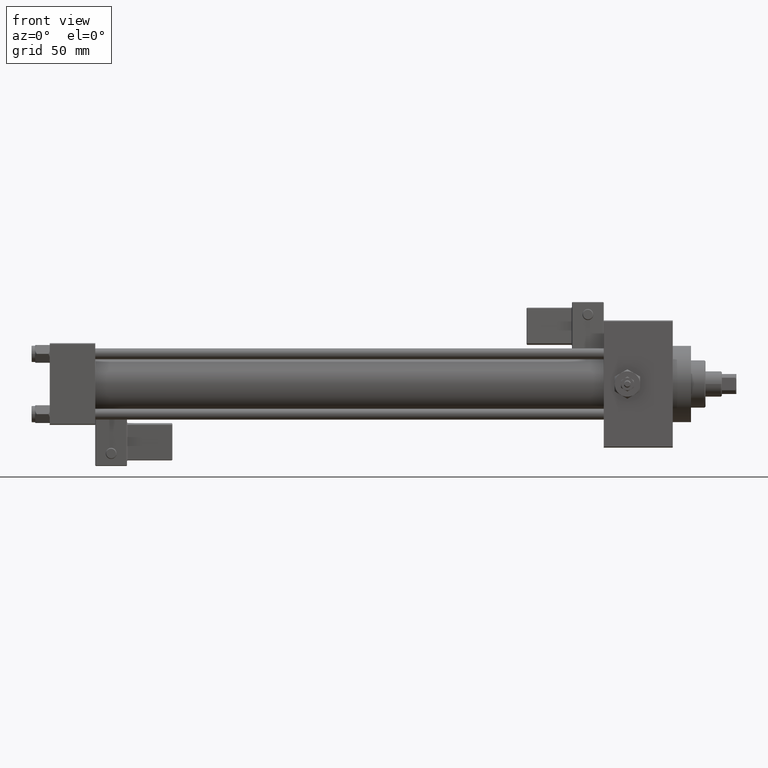
[diagram: clean part render]
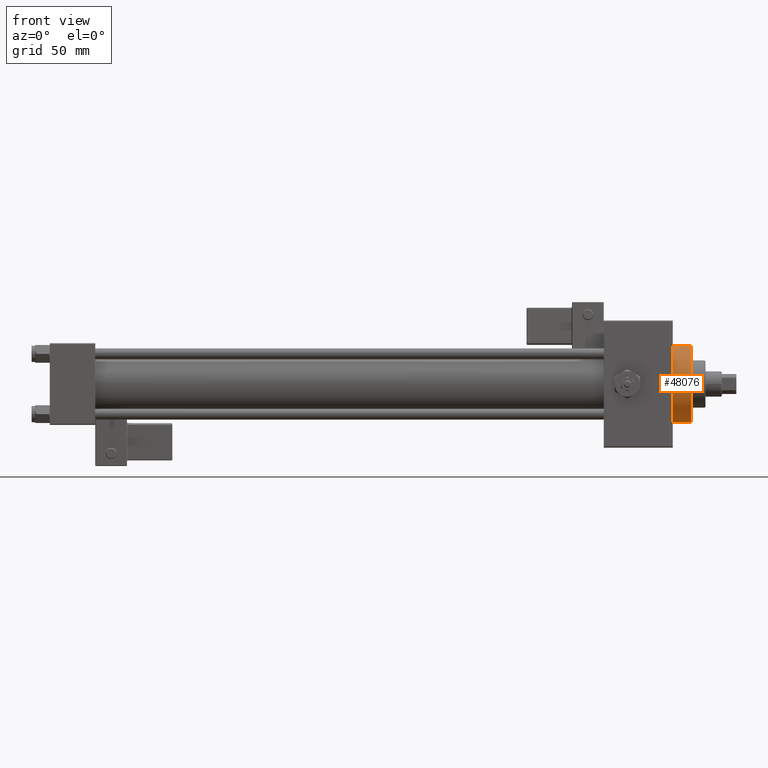
[diagram: same view with one face highlighted and labeled with its STEP entity id]
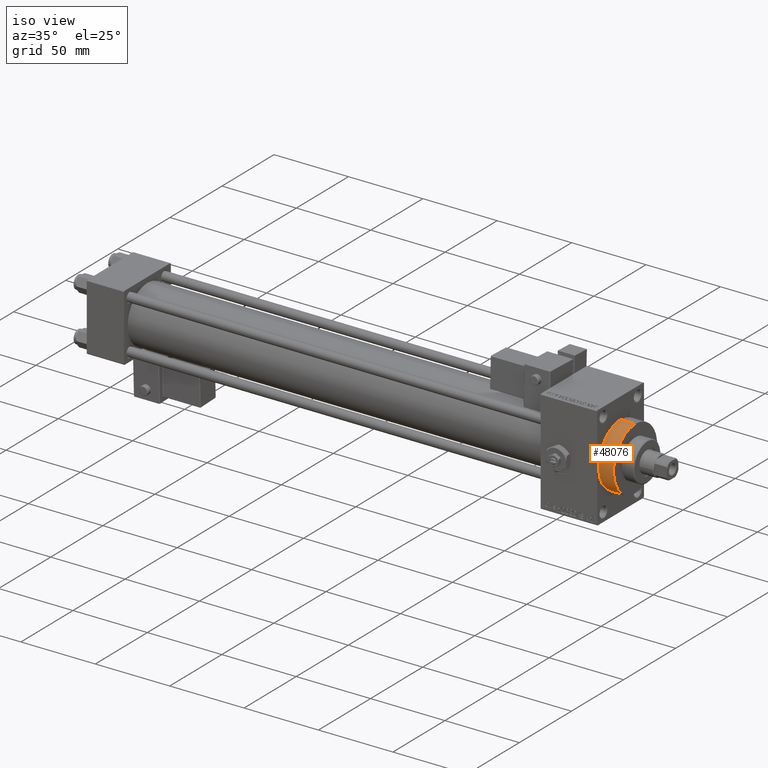
[diagram: same view with one face highlighted and labeled with its STEP entity id]
A machine part, front view. The second image highlights one B-rep face of the part: STEP entity #48076.
A second angle (iso view) of the same face is appended — the face is thin or edge-on in the first view.
In plain terms, the highlighted cylindrical surface (partial cylindrical patch) has radius 21 mm, axis along (-1, -0, -0).
Its self-contained STEP definition (entity closure, byte-faithful):
#861 = CARTESIAN_POINT ( 'NONE',  ( 353.0000000000000568, 2.571758278209441661E-15, -21.00000000000000000 ) ) ;
#5417 = VERTEX_POINT ( 'NONE', #33829 ) ;
#5592 = VERTEX_POINT ( 'NONE', #861 ) ;
#5633 = CARTESIAN_POINT ( 'NONE',  ( 343.0000000000000000, 0.000000000000000000, 0.000000000000000000 ) ) ;
#7182 = LINE ( 'NONE', #10297, #18445 ) ;
#10148 = CARTESIAN_POINT ( 'NONE',  ( 353.0000000000000568, 0.000000000000000000, 0.000000000000000000 ) ) ;
#10278 = DIRECTION ( 'NONE',  ( 1.000000000000000000, 0.000000000000000000, 0.000000000000000000 ) ) ;
#10297 = CARTESIAN_POINT ( 'NONE',  ( 353.0000000000000568, 2.571758278209441661E-15, -21.00000000000000000 ) ) ;
#10490 = ORIENTED_EDGE ( 'NONE', *, *, #16283, .F. ) ;
#11372 = DIRECTION ( 'NONE',  ( 1.000000000000000000, 0.000000000000000000, 0.000000000000000000 ) ) ;
#12781 = VERTEX_POINT ( 'NONE', #33650 ) ;
#16283 = EDGE_CURVE ( 'NONE', #5592, #41164, #7182, .T. ) ;
#18445 = VECTOR ( 'NONE', #26489, 1000.000000000000000 ) ;
#18723 = ORIENTED_EDGE ( 'NONE', *, *, #34115, .T. ) ;
#18791 = CIRCLE ( 'NONE', #27843, 21.00000000000000000 ) ;
#21978 = DIRECTION ( 'NONE',  ( 0.000000000000000000, 0.000000000000000000, 1.000000000000000000 ) ) ;
#22236 = DIRECTION ( 'NONE',  ( -1.000000000000000000, -0.000000000000000000, -0.000000000000000000 ) ) ;
#22302 = EDGE_CURVE ( 'NONE', #12781, #41164, #50535, .T. ) ;
#22719 = CARTESIAN_POINT ( 'NONE',  ( 353.0000000000000568, 0.000000000000000000, 0.000000000000000000 ) ) ;
#24735 = EDGE_LOOP ( 'NONE', ( #10490, #36166, #18723, #45169 ) ) ;
#26489 = DIRECTION ( 'NONE',  ( -1.000000000000000000, -0.000000000000000000, -0.000000000000000000 ) ) ;
#27575 = CARTESIAN_POINT ( 'NONE',  ( 353.0000000000000568, 0.000000000000000000, 21.00000000000000000 ) ) ;
#27843 = AXIS2_PLACEMENT_3D ( 'NONE', #22719, #11372, #46351 ) ;
#28365 = AXIS2_PLACEMENT_3D ( 'NONE', #5633, #10278, #29305 ) ;
#29305 = DIRECTION ( 'NONE',  ( 0.000000000000000000, 0.000000000000000000, -1.000000000000000000 ) ) ;
#29941 = CYLINDRICAL_SURFACE ( 'NONE', #32930, 21.00000000000000000 ) ;
#32930 = AXIS2_PLACEMENT_3D ( 'NONE', #10148, #22236, #21978 ) ;
#33184 = EDGE_CURVE ( 'NONE', #5417, #5592, #18791, .T. ) ;
#33650 = CARTESIAN_POINT ( 'NONE',  ( 343.0000000000000000, 0.000000000000000000, 21.00000000000000000 ) ) ;
#33829 = CARTESIAN_POINT ( 'NONE',  ( 353.0000000000000568, 0.000000000000000000, 21.00000000000000000 ) ) ;
#34115 = EDGE_CURVE ( 'NONE', #5417, #12781, #50721, .T. ) ;
#36166 = ORIENTED_EDGE ( 'NONE', *, *, #33184, .F. ) ;
#37392 = FACE_OUTER_BOUND ( 'NONE', #24735, .T. ) ;
#41164 = VERTEX_POINT ( 'NONE', #47480 ) ;
#43239 = DIRECTION ( 'NONE',  ( -1.000000000000000000, -0.000000000000000000, -0.000000000000000000 ) ) ;
#43461 = VECTOR ( 'NONE', #43239, 1000.000000000000000 ) ;
#45169 = ORIENTED_EDGE ( 'NONE', *, *, #22302, .T. ) ;
#46351 = DIRECTION ( 'NONE',  ( 0.000000000000000000, 0.000000000000000000, -1.000000000000000000 ) ) ;
#47480 = CARTESIAN_POINT ( 'NONE',  ( 343.0000000000000000, 2.571758278209441661E-15, -21.00000000000000000 ) ) ;
#48076 = ADVANCED_FACE ( 'NONE', ( #37392 ), #29941, .T. ) ;
#50535 = CIRCLE ( 'NONE', #28365, 21.00000000000000000 ) ;
#50721 = LINE ( 'NONE', #27575, #43461 ) ;